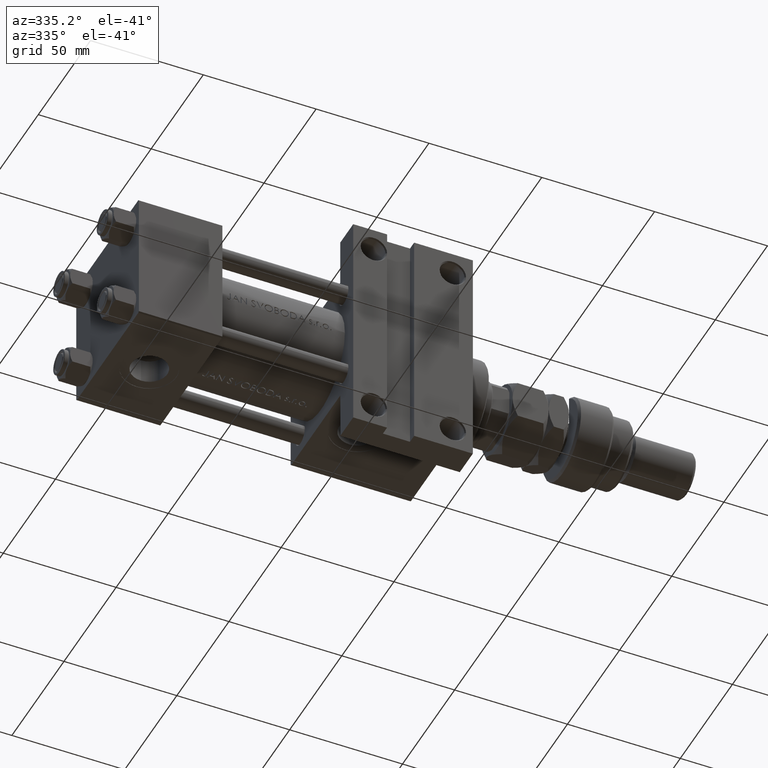
[diagram: clean part render]
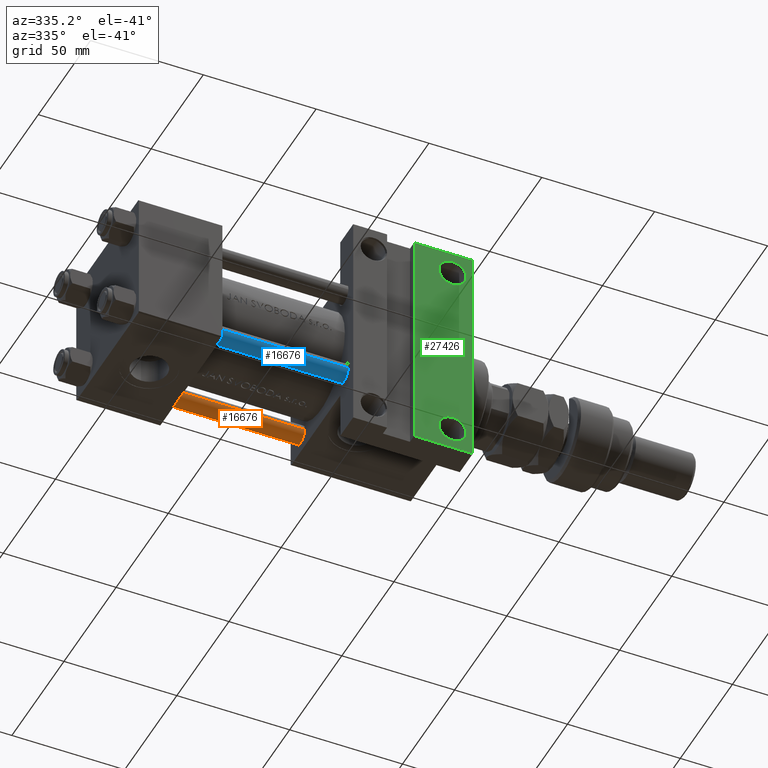
[diagram: same view with three faces highlighted in distinct colors, each labeled with its STEP entity id]
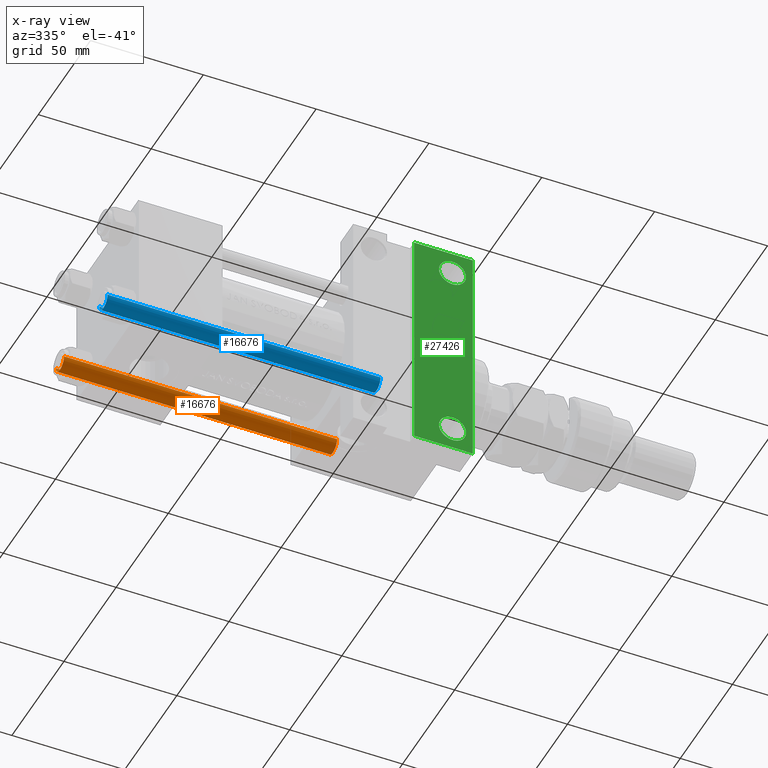
[diagram: x-ray of the same camera — body ghosted, the three highlighted faces saturated]
A machine part, auxiliary view with three faces highlighted in distinct colors.
The next image is the same camera in x-ray (body ghosted, the three faces saturated) — at least one of them is partly hidden behind the body in this view.
Their STEP definitions:

[orange] entity #16676 — the highlighted cylindrical surface (edge-blend (fillet) strip) has radius 4 mm, axis along (-1, -0, 0).
#129 = LINE ( 'NONE', #17198, #16303 ) ;
#2668 = CARTESIAN_POINT ( 'NONE',  ( 0.000000000000000000, 0.000000000000000000, 122.0000000000000000 ) ) ;
#3475 = DIRECTION ( 'NONE',  ( -1.000000000000000000, 0.000000000000000000, 0.000000000000000000 ) ) ;
#3909 = EDGE_CURVE ( 'NONE', #12420, #41503, #35502, .T. ) ;
#4570 = AXIS2_PLACEMENT_3D ( 'NONE', #9805, #16681, #46692 ) ;
#4951 = LINE ( 'NONE', #11173, #31384 ) ;
#6769 = ORIENTED_EDGE ( 'NONE', *, *, #31878, .F. ) ;
#9805 = CARTESIAN_POINT ( 'NONE',  ( 0.000000000000000000, 0.000000000000000000, 0.5000000000000559552 ) ) ;
#11173 = CARTESIAN_POINT ( 'NONE',  ( 4.000000000000000000, 4.898587196589411843E-16, 122.0000000000000000 ) ) ;
#11901 = FACE_OUTER_BOUND ( 'NONE', #51680, .T. ) ;
#12407 = ORIENTED_EDGE ( 'NONE', *, *, #46655, .T. ) ;
#12420 = VERTEX_POINT ( 'NONE', #14089 ) ;
#14089 = CARTESIAN_POINT ( 'NONE',  ( 4.000000000000000000, 4.898587196589411843E-16, 121.5000000000000426 ) ) ;
#15151 = DIRECTION ( 'NONE',  ( -0.000000000000000000, -0.000000000000000000, -1.000000000000000000 ) ) ;
#15847 = CIRCLE ( 'NONE', #4570, 4.000000000000000000 ) ;
#15983 = EDGE_CURVE ( 'NONE', #41503, #44332, #129, .T. ) ;
#16303 = VECTOR ( 'NONE', #33749, 1000.000000000000000 ) ;
#16439 = AXIS2_PLACEMENT_3D ( 'NONE', #45897, #36698, #41035 ) ;
#16676 = ADVANCED_FACE ( 'NONE', ( #11901 ), #27626, .T. ) ;
#16681 = DIRECTION ( 'NONE',  ( -0.000000000000000000, -0.000000000000000000, 1.000000000000000000 ) ) ;
#17198 = CARTESIAN_POINT ( 'NONE',  ( -4.000000000000000000, 0.000000000000000000, 122.0000000000000000 ) ) ;
#24454 = CARTESIAN_POINT ( 'NONE',  ( 4.000000000000000000, 4.898587196589411843E-16, 0.5000000000000559552 ) ) ;
#26801 = ORIENTED_EDGE ( 'NONE', *, *, #3909, .T. ) ;
#27626 = CYLINDRICAL_SURFACE ( 'NONE', #51831, 4.000000000000000000 ) ;
#31384 = VECTOR ( 'NONE', #36115, 1000.000000000000000 ) ;
#31878 = EDGE_CURVE ( 'NONE', #12420, #33269, #4951, .T. ) ;
#33269 = VERTEX_POINT ( 'NONE', #24454 ) ;
#33749 = DIRECTION ( 'NONE',  ( -0.000000000000000000, -0.000000000000000000, -1.000000000000000000 ) ) ;
#34529 = CARTESIAN_POINT ( 'NONE',  ( -4.000000000000000000, 0.000000000000000000, 121.5000000000000426 ) ) ;
#35502 = CIRCLE ( 'NONE', #16439, 4.000000000000000000 ) ;
#36115 = DIRECTION ( 'NONE',  ( -0.000000000000000000, -0.000000000000000000, -1.000000000000000000 ) ) ;
#36698 = DIRECTION ( 'NONE',  ( 0.000000000000000000, 0.000000000000000000, -1.000000000000000000 ) ) ;
#41035 = DIRECTION ( 'NONE',  ( 1.000000000000000000, 0.000000000000000000, 0.000000000000000000 ) ) ;
#41503 = VERTEX_POINT ( 'NONE', #34529 ) ;
#42477 = ORIENTED_EDGE ( 'NONE', *, *, #15983, .T. ) ;
#44332 = VERTEX_POINT ( 'NONE', #53589 ) ;
#45897 = CARTESIAN_POINT ( 'NONE',  ( 0.000000000000000000, 0.000000000000000000, 121.5000000000000426 ) ) ;
#46655 = EDGE_CURVE ( 'NONE', #44332, #33269, #15847, .T. ) ;
#46692 = DIRECTION ( 'NONE',  ( 1.000000000000000000, 0.000000000000000000, 0.000000000000000000 ) ) ;
#51680 = EDGE_LOOP ( 'NONE', ( #6769, #26801, #42477, #12407 ) ) ;
#51831 = AXIS2_PLACEMENT_3D ( 'NONE', #2668, #15151, #3475 ) ;
#53589 = CARTESIAN_POINT ( 'NONE',  ( -4.000000000000000000, 0.000000000000000000, 0.5000000000000559552 ) ) ;

[blue] entity #16676 — the highlighted cylindrical surface (edge-blend (fillet) strip) has radius 4 mm, axis along (1, 0, 0).
#129 = LINE ( 'NONE', #17198, #16303 ) ;
#2668 = CARTESIAN_POINT ( 'NONE',  ( 0.000000000000000000, 0.000000000000000000, 122.0000000000000000 ) ) ;
#3475 = DIRECTION ( 'NONE',  ( -1.000000000000000000, 0.000000000000000000, 0.000000000000000000 ) ) ;
#3909 = EDGE_CURVE ( 'NONE', #12420, #41503, #35502, .T. ) ;
#4570 = AXIS2_PLACEMENT_3D ( 'NONE', #9805, #16681, #46692 ) ;
#4951 = LINE ( 'NONE', #11173, #31384 ) ;
#6769 = ORIENTED_EDGE ( 'NONE', *, *, #31878, .F. ) ;
#9805 = CARTESIAN_POINT ( 'NONE',  ( 0.000000000000000000, 0.000000000000000000, 0.5000000000000559552 ) ) ;
#11173 = CARTESIAN_POINT ( 'NONE',  ( 4.000000000000000000, 4.898587196589411843E-16, 122.0000000000000000 ) ) ;
#11901 = FACE_OUTER_BOUND ( 'NONE', #51680, .T. ) ;
#12407 = ORIENTED_EDGE ( 'NONE', *, *, #46655, .T. ) ;
#12420 = VERTEX_POINT ( 'NONE', #14089 ) ;
#14089 = CARTESIAN_POINT ( 'NONE',  ( 4.000000000000000000, 4.898587196589411843E-16, 121.5000000000000426 ) ) ;
#15151 = DIRECTION ( 'NONE',  ( -0.000000000000000000, -0.000000000000000000, -1.000000000000000000 ) ) ;
#15847 = CIRCLE ( 'NONE', #4570, 4.000000000000000000 ) ;
#15983 = EDGE_CURVE ( 'NONE', #41503, #44332, #129, .T. ) ;
#16303 = VECTOR ( 'NONE', #33749, 1000.000000000000000 ) ;
#16439 = AXIS2_PLACEMENT_3D ( 'NONE', #45897, #36698, #41035 ) ;
#16676 = ADVANCED_FACE ( 'NONE', ( #11901 ), #27626, .T. ) ;
#16681 = DIRECTION ( 'NONE',  ( -0.000000000000000000, -0.000000000000000000, 1.000000000000000000 ) ) ;
#17198 = CARTESIAN_POINT ( 'NONE',  ( -4.000000000000000000, 0.000000000000000000, 122.0000000000000000 ) ) ;
#24454 = CARTESIAN_POINT ( 'NONE',  ( 4.000000000000000000, 4.898587196589411843E-16, 0.5000000000000559552 ) ) ;
#26801 = ORIENTED_EDGE ( 'NONE', *, *, #3909, .T. ) ;
#27626 = CYLINDRICAL_SURFACE ( 'NONE', #51831, 4.000000000000000000 ) ;
#31384 = VECTOR ( 'NONE', #36115, 1000.000000000000000 ) ;
#31878 = EDGE_CURVE ( 'NONE', #12420, #33269, #4951, .T. ) ;
#33269 = VERTEX_POINT ( 'NONE', #24454 ) ;
#33749 = DIRECTION ( 'NONE',  ( -0.000000000000000000, -0.000000000000000000, -1.000000000000000000 ) ) ;
#34529 = CARTESIAN_POINT ( 'NONE',  ( -4.000000000000000000, 0.000000000000000000, 121.5000000000000426 ) ) ;
#35502 = CIRCLE ( 'NONE', #16439, 4.000000000000000000 ) ;
#36115 = DIRECTION ( 'NONE',  ( -0.000000000000000000, -0.000000000000000000, -1.000000000000000000 ) ) ;
#36698 = DIRECTION ( 'NONE',  ( 0.000000000000000000, 0.000000000000000000, -1.000000000000000000 ) ) ;
#41035 = DIRECTION ( 'NONE',  ( 1.000000000000000000, 0.000000000000000000, 0.000000000000000000 ) ) ;
#41503 = VERTEX_POINT ( 'NONE', #34529 ) ;
#42477 = ORIENTED_EDGE ( 'NONE', *, *, #15983, .T. ) ;
#44332 = VERTEX_POINT ( 'NONE', #53589 ) ;
#45897 = CARTESIAN_POINT ( 'NONE',  ( 0.000000000000000000, 0.000000000000000000, 121.5000000000000426 ) ) ;
#46655 = EDGE_CURVE ( 'NONE', #44332, #33269, #15847, .T. ) ;
#46692 = DIRECTION ( 'NONE',  ( 1.000000000000000000, 0.000000000000000000, 0.000000000000000000 ) ) ;
#51680 = EDGE_LOOP ( 'NONE', ( #6769, #26801, #42477, #12407 ) ) ;
#51831 = AXIS2_PLACEMENT_3D ( 'NONE', #2668, #15151, #3475 ) ;
#53589 = CARTESIAN_POINT ( 'NONE',  ( -4.000000000000000000, 0.000000000000000000, 0.5000000000000559552 ) ) ;

[green] entity #27426 — the highlighted planar face has unit normal (0, -1, -0).
#515 = FACE_BOUND ( 'NONE', #37422, .T. ) ;
#765 = ORIENTED_EDGE ( 'NONE', *, *, #36253, .T. ) ;
#1529 = ORIENTED_EDGE ( 'NONE', *, *, #39910, .T. ) ;
#1952 = EDGE_CURVE ( 'NONE', #19520, #17454, #21572, .T. ) ;
#2188 = VECTOR ( 'NONE', #37553, 1000.000000000000000 ) ;
#2513 = CARTESIAN_POINT ( 'NONE',  ( 121.9999999999999858, -51.49999999999999289, -29.99999999999999645 ) ) ;
#2679 = ORIENTED_EDGE ( 'NONE', *, *, #1952, .T. ) ;
#2703 = CARTESIAN_POINT ( 'NONE',  ( 94.99999999999998579, -51.50000000000000711, -29.99999999999999645 ) ) ;
#3819 = CARTESIAN_POINT ( 'NONE',  ( 144.9994999999999266, 41.50000000000000000, -29.99999999999999289 ) ) ;
#4344 = AXIS2_PLACEMENT_3D ( 'NONE', #46623, #12761, #50687 ) ;
#4739 = VERTEX_POINT ( 'NONE', #35497 ) ;
#4837 = VERTEX_POINT ( 'NONE', #41692 ) ;
#7092 = EDGE_LOOP ( 'NONE', ( #2679, #24488 ) ) ;
#7800 = CARTESIAN_POINT ( 'NONE',  ( 138.9999999999999432, -41.50000000000000000, -30.00000000000000000 ) ) ;
#8652 = VERTEX_POINT ( 'NONE', #41731 ) ;
#8968 = ORIENTED_EDGE ( 'NONE', *, *, #38155, .T. ) ;
#9309 = EDGE_CURVE ( 'NONE', #8652, #4739, #12201, .T. ) ;
#9447 = PLANE ( 'NONE',  #53032 ) ;
#9523 = AXIS2_PLACEMENT_3D ( 'NONE', #14427, #52632, #22835 ) ;
#10175 = VECTOR ( 'NONE', #12447, 1000.000000000000000 ) ;
#12201 = LINE ( 'NONE', #16518, #24371 ) ;
#12447 = DIRECTION ( 'NONE',  ( -0.000000000000000000, -1.000000000000000000, -0.000000000000000000 ) ) ;
#12761 = DIRECTION ( 'NONE',  ( -0.000000000000000000, -1.156482317317871478E-16, 1.000000000000000000 ) ) ;
#14427 = CARTESIAN_POINT ( 'NONE',  ( 138.9999999999999432, 41.50000000000000000, -29.99999999999999289 ) ) ;
#14728 = CIRCLE ( 'NONE', #4344, 5.999499999999990507 ) ;
#16058 = ORIENTED_EDGE ( 'NONE', *, *, #9309, .T. ) ;
#16518 = CARTESIAN_POINT ( 'NONE',  ( 148.0000000000000000, 30.00000000000000000, -29.99999999999999289 ) ) ;
#17454 = VERTEX_POINT ( 'NONE', #3819 ) ;
#17891 = EDGE_CURVE ( 'NONE', #27984, #37213, #42235, .T. ) ;
#17939 = ORIENTED_EDGE ( 'NONE', *, *, #28796, .T. ) ;
#19520 = VERTEX_POINT ( 'NONE', #28000 ) ;
#20384 = CARTESIAN_POINT ( 'NONE',  ( 138.9999999999999432, 41.50000000000000000, -29.99999999999999289 ) ) ;
#20460 = CARTESIAN_POINT ( 'NONE',  ( 121.9999999999999858, 51.50000000000000711, -29.99999999999999645 ) ) ;
#21572 = CIRCLE ( 'NONE', #36304, 5.999499999999962974 ) ;
#22835 = DIRECTION ( 'NONE',  ( 0.000000000000000000, 1.000000000000000000, 0.000000000000000000 ) ) ;
#24371 = VECTOR ( 'NONE', #45538, 1000.000000000000000 ) ;
#24488 = ORIENTED_EDGE ( 'NONE', *, *, #40781, .T. ) ;
#26001 = CARTESIAN_POINT ( 'NONE',  ( 148.0000000000000000, 30.00000000000000000, -29.99999999999999289 ) ) ;
#27426 = ADVANCED_FACE ( 'NONE', ( #37684, #515, #46610 ), #9447, .T. ) ;
#27984 = VERTEX_POINT ( 'NONE', #20460 ) ;
#28000 = CARTESIAN_POINT ( 'NONE',  ( 133.0004999999999882, 41.50000000000000000, -29.99999999999999289 ) ) ;
#28796 = EDGE_CURVE ( 'NONE', #37690, #4837, #36627, .T. ) ;
#29205 = CARTESIAN_POINT ( 'NONE',  ( 133.0004999999999598, -41.50000000000000000, -30.00000000000000000 ) ) ;
#29809 = DIRECTION ( 'NONE',  ( 0.000000000000000000, 1.156482317317871478E-16, -1.000000000000000000 ) ) ;
#30925 = DIRECTION ( 'NONE',  ( -1.000000000000000000, -0.000000000000000000, -0.000000000000000000 ) ) ;
#32290 = AXIS2_PLACEMENT_3D ( 'NONE', #7800, #48769, #49031 ) ;
#32341 = DIRECTION ( 'NONE',  ( 0.000000000000000000, 1.000000000000000000, 0.000000000000000000 ) ) ;
#33345 = DIRECTION ( 'NONE',  ( 0.000000000000000000, 1.000000000000000000, 1.156482317317871478E-16 ) ) ;
#33356 = EDGE_LOOP ( 'NONE', ( #51336, #8968, #16058, #765 ) ) ;
#35497 = CARTESIAN_POINT ( 'NONE',  ( 148.0000000000000000, -51.50000000000000711, -29.99999999999999645 ) ) ;
#36253 = EDGE_CURVE ( 'NONE', #4739, #37213, #51794, .T. ) ;
#36304 = AXIS2_PLACEMENT_3D ( 'NONE', #20384, #53465, #32341 ) ;
#36627 = CIRCLE ( 'NONE', #32290, 5.999499999999990507 ) ;
#37213 = VERTEX_POINT ( 'NONE', #2513 ) ;
#37422 = EDGE_LOOP ( 'NONE', ( #17939, #1529 ) ) ;
#37553 = DIRECTION ( 'NONE',  ( 1.000000000000000000, -2.618450529776313247E-16, 0.000000000000000000 ) ) ;
#37684 = FACE_OUTER_BOUND ( 'NONE', #33356, .T. ) ;
#37690 = VERTEX_POINT ( 'NONE', #29205 ) ;
#38155 = EDGE_CURVE ( 'NONE', #27984, #8652, #42146, .T. ) ;
#39910 = EDGE_CURVE ( 'NONE', #4837, #37690, #14728, .T. ) ;
#40781 = EDGE_CURVE ( 'NONE', #17454, #19520, #42433, .T. ) ;
#41692 = CARTESIAN_POINT ( 'NONE',  ( 144.9994999999999550, -41.50000000000000000, -30.00000000000000000 ) ) ;
#41731 = CARTESIAN_POINT ( 'NONE',  ( 148.0000000000000000, 51.49999999999999289, -29.99999999999999645 ) ) ;
#42146 = LINE ( 'NONE', #50806, #2188 ) ;
#42235 = LINE ( 'NONE', #49303, #10175 ) ;
#42433 = CIRCLE ( 'NONE', #9523, 5.999499999999962974 ) ;
#45538 = DIRECTION ( 'NONE',  ( 0.000000000000000000, -1.000000000000000000, -1.156482317317871478E-16 ) ) ;
#46610 = FACE_BOUND ( 'NONE', #7092, .T. ) ;
#46623 = CARTESIAN_POINT ( 'NONE',  ( 138.9999999999999432, -41.50000000000000000, -30.00000000000000000 ) ) ;
#48769 = DIRECTION ( 'NONE',  ( -0.000000000000000000, -1.156482317317871478E-16, 1.000000000000000000 ) ) ;
#49031 = DIRECTION ( 'NONE',  ( 0.000000000000000000, 1.000000000000000000, 0.000000000000000000 ) ) ;
#49303 = CARTESIAN_POINT ( 'NONE',  ( 121.9999999999999858, -51.49999999999999289, -29.99999999999999645 ) ) ;
#50687 = DIRECTION ( 'NONE',  ( 0.000000000000000000, 1.000000000000000000, 0.000000000000000000 ) ) ;
#50806 = CARTESIAN_POINT ( 'NONE',  ( 95.00000000000000000, 51.50000000000000711, -29.99999999999999645 ) ) ;
#51336 = ORIENTED_EDGE ( 'NONE', *, *, #17891, .F. ) ;
#51794 = LINE ( 'NONE', #2703, #53182 ) ;
#52632 = DIRECTION ( 'NONE',  ( -0.000000000000000000, -1.156482317317871478E-16, 1.000000000000000000 ) ) ;
#53032 = AXIS2_PLACEMENT_3D ( 'NONE', #26001, #29809, #33345 ) ;
#53182 = VECTOR ( 'NONE', #30925, 1000.000000000000000 ) ;
#53465 = DIRECTION ( 'NONE',  ( -0.000000000000000000, -1.156482317317871478E-16, 1.000000000000000000 ) ) ;